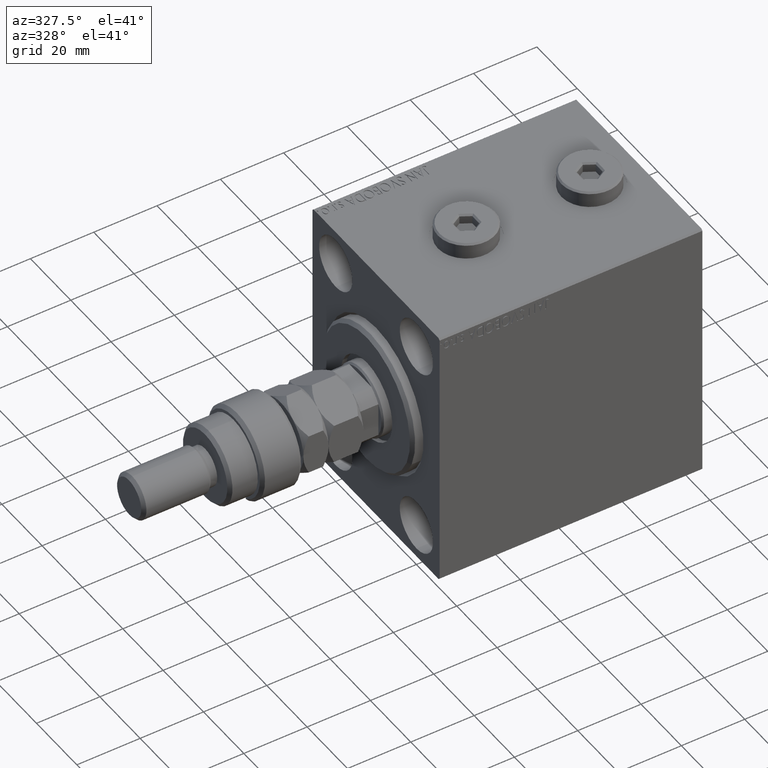
[diagram: clean part render]
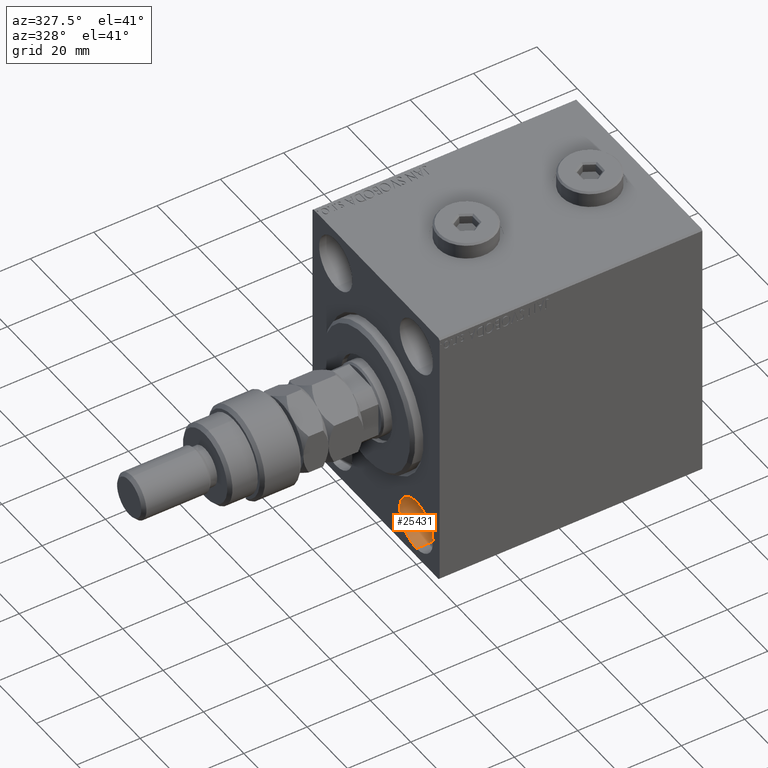
[diagram: same view with one face highlighted and labeled with its STEP entity id]
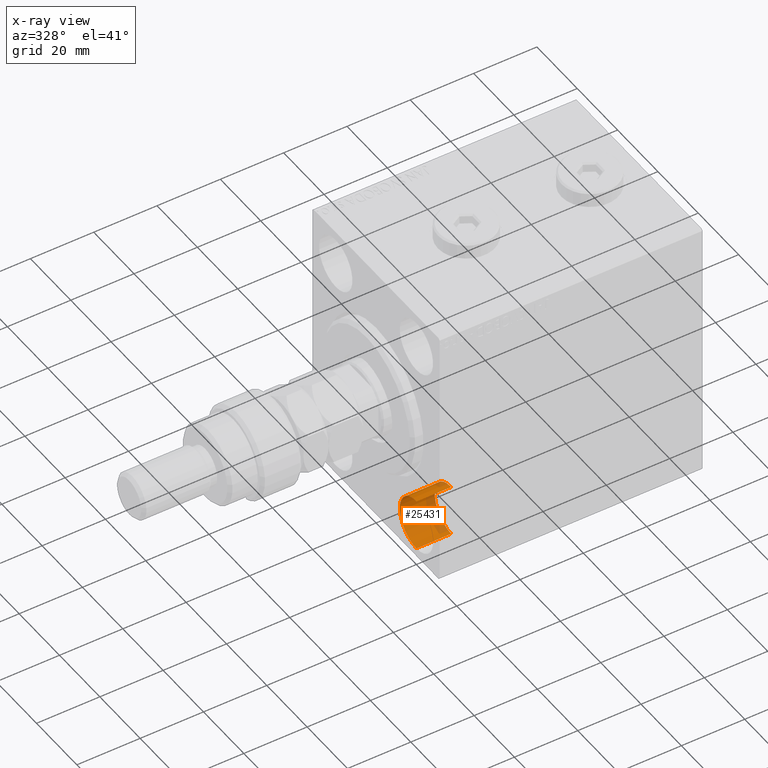
[diagram: x-ray of the same camera — body ghosted, the highlighted face saturated]
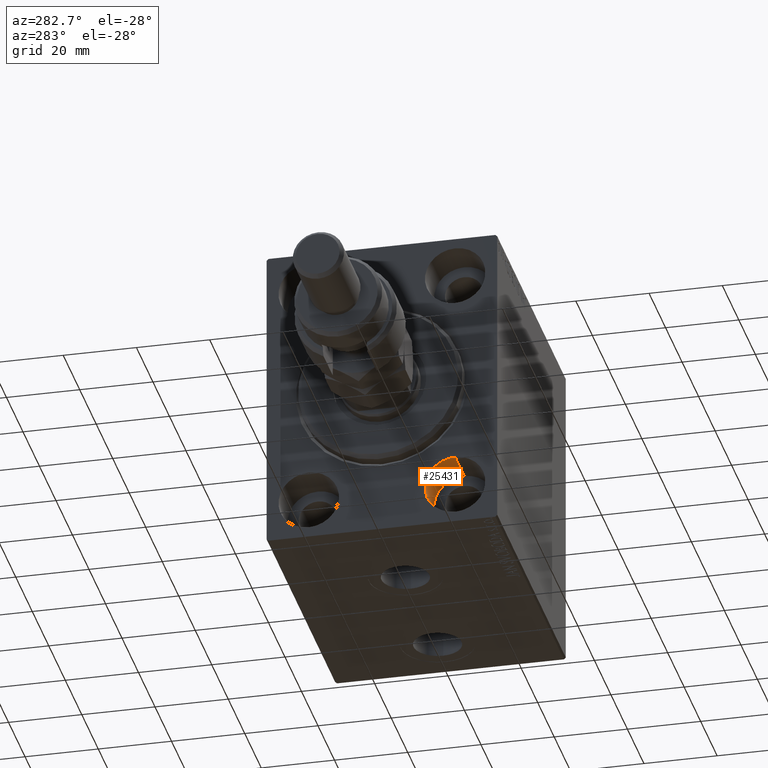
[diagram: same view with one face highlighted and labeled with its STEP entity id]
A machine part, auxiliary view. The second image highlights one B-rep face of the part: STEP entity #25431.
The next image is the same camera in x-ray: the body ghosted, the highlighted face saturated — about 20% of this face is hidden behind the body in this view.
A second angle (auxiliary view) of the same face is appended — the face is thin or edge-on in the first view.
In plain terms, the highlighted cylindrical surface (edge-blend (fillet) strip) has radius 8.25 mm, axis along (-1, -0, -0).
Its self-contained STEP definition (entity closure, byte-faithful):
#48 = VERTEX_POINT ( 'NONE', #46557 ) ;
#170 = CARTESIAN_POINT ( 'NONE',  ( 0.000000000000000000, -20.00000000000000355, -23.24999999999999289 ) ) ;
#1640 = LINE ( 'NONE', #16419, #24486 ) ;
#2762 = VERTEX_POINT ( 'NONE', #15768 ) ;
#3738 = VERTEX_POINT ( 'NONE', #34681 ) ;
#6373 = DIRECTION ( 'NONE',  ( -1.000000000000000000, -0.000000000000000000, -0.000000000000000000 ) ) ;
#7713 = LINE ( 'NONE', #19335, #29722 ) ;
#8683 = EDGE_CURVE ( 'NONE', #48, #2762, #7713, .T. ) ;
#8847 = AXIS2_PLACEMENT_3D ( 'NONE', #15723, #34604, #44982 ) ;
#10023 = CARTESIAN_POINT ( 'NONE',  ( 11.00000000000000000, -20.00000000000000355, -31.49999999999999289 ) ) ;
#15723 = CARTESIAN_POINT ( 'NONE',  ( 11.00000000000000000, -20.00000000000000355, -31.49999999999999289 ) ) ;
#15768 = CARTESIAN_POINT ( 'NONE',  ( 0.000000000000000000, -20.00000000000000355, -39.74999999999999289 ) ) ;
#16419 = CARTESIAN_POINT ( 'NONE',  ( 11.00000000000000000, -20.00000000000000355, -23.24999999999999289 ) ) ;
#16587 = CIRCLE ( 'NONE', #34349, 8.250000000000000000 ) ;
#17990 = AXIS2_PLACEMENT_3D ( 'NONE', #10023, #6373, #19557 ) ;
#19335 = CARTESIAN_POINT ( 'NONE',  ( 11.00000000000000000, -20.00000000000000355, -39.74999999999999289 ) ) ;
#19557 = DIRECTION ( 'NONE',  ( 0.000000000000000000, 0.000000000000000000, 1.000000000000000000 ) ) ;
#20782 = DIRECTION ( 'NONE',  ( -1.000000000000000000, -0.000000000000000000, -0.000000000000000000 ) ) ;
#21420 = DIRECTION ( 'NONE',  ( -1.000000000000000000, 0.000000000000000000, 0.000000000000000000 ) ) ;
#24342 = CYLINDRICAL_SURFACE ( 'NONE', #17990, 8.250000000000000000 ) ;
#24486 = VECTOR ( 'NONE', #20782, 1000.000000000000000 ) ;
#24806 = DIRECTION ( 'NONE',  ( 0.000000000000000000, 0.000000000000000000, 1.000000000000000000 ) ) ;
#25431 = ADVANCED_FACE ( 'NONE', ( #37938 ), #24342, .F. ) ;
#28390 = EDGE_LOOP ( 'NONE', ( #39662, #33673, #39981, #31007 ) ) ;
#29722 = VECTOR ( 'NONE', #30225, 1000.000000000000000 ) ;
#30225 = DIRECTION ( 'NONE',  ( -1.000000000000000000, -0.000000000000000000, -0.000000000000000000 ) ) ;
#31007 = ORIENTED_EDGE ( 'NONE', *, *, #46566, .T. ) ;
#31246 = VERTEX_POINT ( 'NONE', #170 ) ;
#33673 = ORIENTED_EDGE ( 'NONE', *, *, #34203, .F. ) ;
#34203 = EDGE_CURVE ( 'NONE', #3738, #48, #42810, .T. ) ;
#34349 = AXIS2_PLACEMENT_3D ( 'NONE', #36879, #21420, #24806 ) ;
#34604 = DIRECTION ( 'NONE',  ( -1.000000000000000000, 0.000000000000000000, 0.000000000000000000 ) ) ;
#34681 = CARTESIAN_POINT ( 'NONE',  ( 11.00000000000000000, -20.00000000000000355, -23.24999999999999289 ) ) ;
#36879 = CARTESIAN_POINT ( 'NONE',  ( 0.000000000000000000, -20.00000000000000355, -31.49999999999999289 ) ) ;
#37938 = FACE_OUTER_BOUND ( 'NONE', #28390, .T. ) ;
#38269 = EDGE_CURVE ( 'NONE', #3738, #31246, #1640, .T. ) ;
#39662 = ORIENTED_EDGE ( 'NONE', *, *, #8683, .F. ) ;
#39981 = ORIENTED_EDGE ( 'NONE', *, *, #38269, .T. ) ;
#42810 = CIRCLE ( 'NONE', #8847, 8.250000000000000000 ) ;
#44982 = DIRECTION ( 'NONE',  ( 0.000000000000000000, 0.000000000000000000, 1.000000000000000000 ) ) ;
#46557 = CARTESIAN_POINT ( 'NONE',  ( 11.00000000000000000, -20.00000000000000355, -39.74999999999999289 ) ) ;
#46566 = EDGE_CURVE ( 'NONE', #31246, #2762, #16587, .T. ) ;